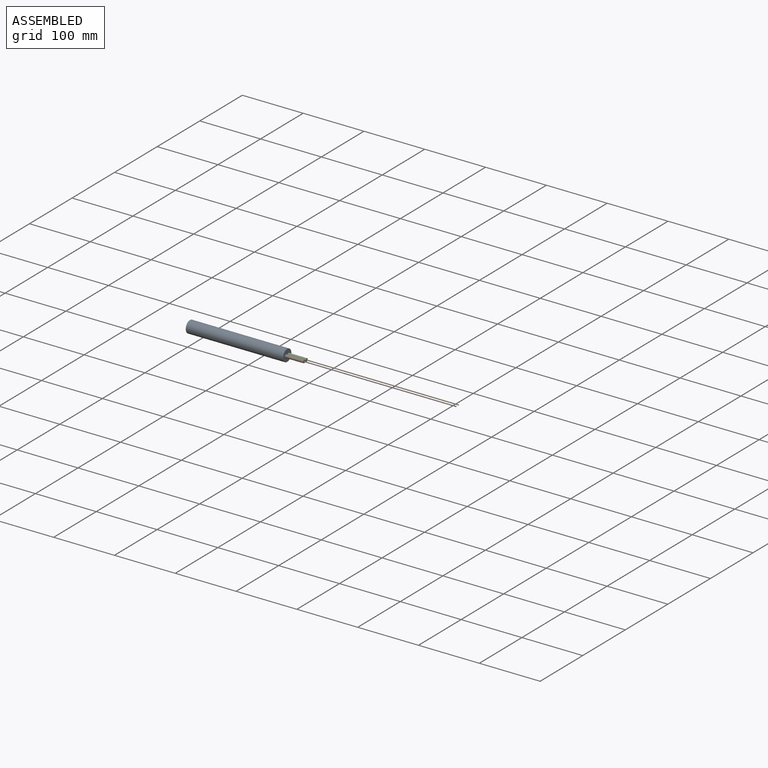
[diagram: assembled view]
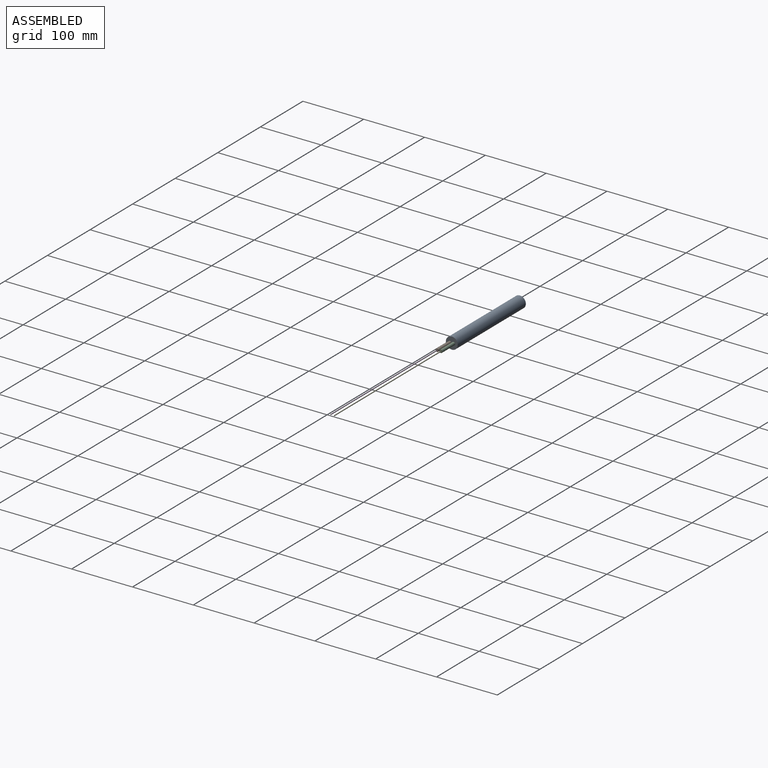
[diagram: assembled view, second angle]
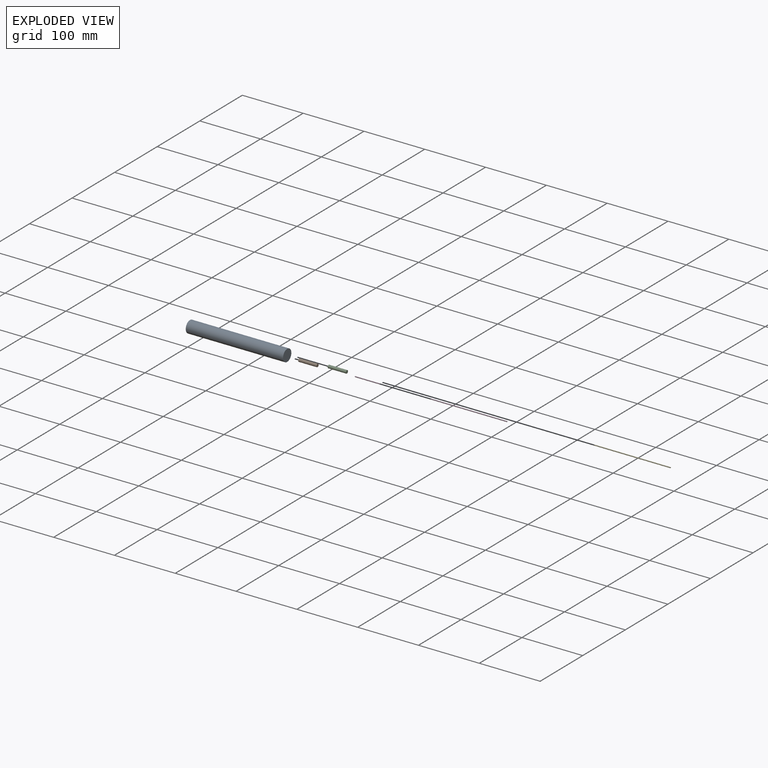
[diagram: exploded view]
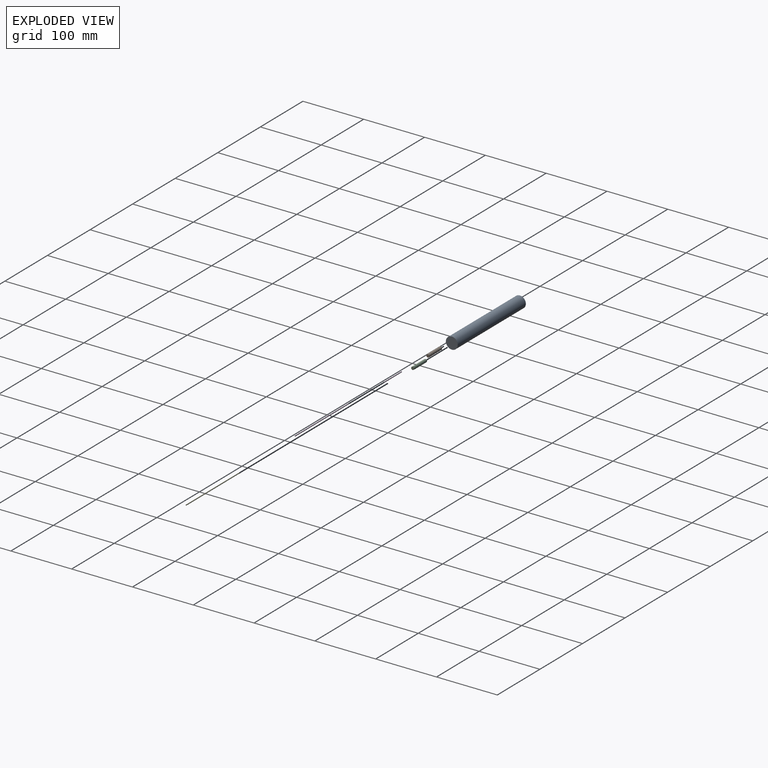
[diagram: exploded view, second angle]
ASSEMBLY  parts=5 mates=4
PART A: 3 faces, bbox 160x19.5x19.5 mm
  f0: plane 19.5x19.5mm, normal (-1,0,0), area 298.6mm2, adj f2
  f1: plane 19.5x19.5mm, normal (1,0,0), area 298.6mm2, adj f2
  f2: cylinder r=9.75mm len=160mm, axis (1,0,0), area 9801.8mm2, adj f0,f1
PART B: 3 faces, bbox 30x5x5 mm
  f0: plane 5x5mm, normal (-1,0,0), area 19.6mm2, adj f2
  f1: plane 5x5mm, normal (1,0,0), area 19.6mm2, adj f2
  f2: cylinder r=2.5mm len=30mm, axis (1,0,0), area 471.2mm2, adj f0,f1
PART C: same geometry as B
PART D: 3 faces, bbox 250x1.5x1.5 mm
  f0: plane 1.5x1.5mm, normal (-1,0,0), area 1.8mm2, adj f2
  f1: plane 1.5x1.5mm, normal (1,0,0), area 1.8mm2, adj f2
  f2: cylinder r=0.75mm len=250mm, axis (1,0,0), area 1178.1mm2, adj f0,f1
PART E: same geometry as D
PLACE A t=(-114.72,36.44,-56.51)mm
PLACE B t=(45.28,26.19,-49.26)mm
PLACE C t=(45.28,32.19,-49.26)mm
PLACE D t=(75.28,24.44,-47.51)mm
PLACE E t=(75.28,30.44,-47.51)mm
MATE fastened E.f2 <-> C.f2  axis (-1,0,0) through (75.28,29.69,-46.76)mm
MATE fastened B.f2 <-> A.f1  axis (-1,0,0) through (45.28,23.69,-46.76)mm
MATE fastened C.f2 <-> A.f1  axis (-1,0,0) through (45.28,29.69,-46.76)mm
MATE fastened D.f2 <-> B.f2  axis (-1,0,0) through (75.28,23.69,-46.76)mm
